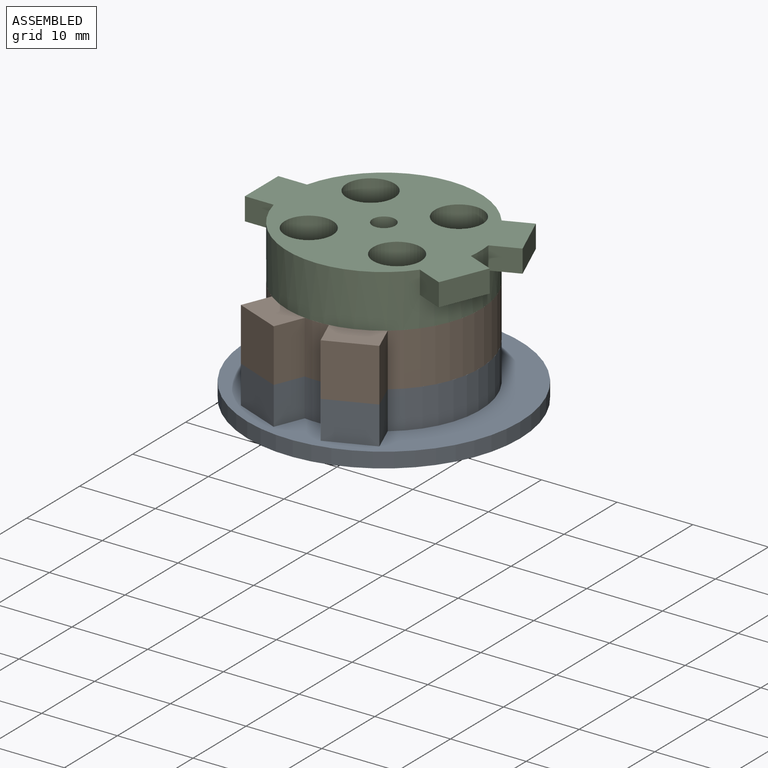
[diagram: assembled view]
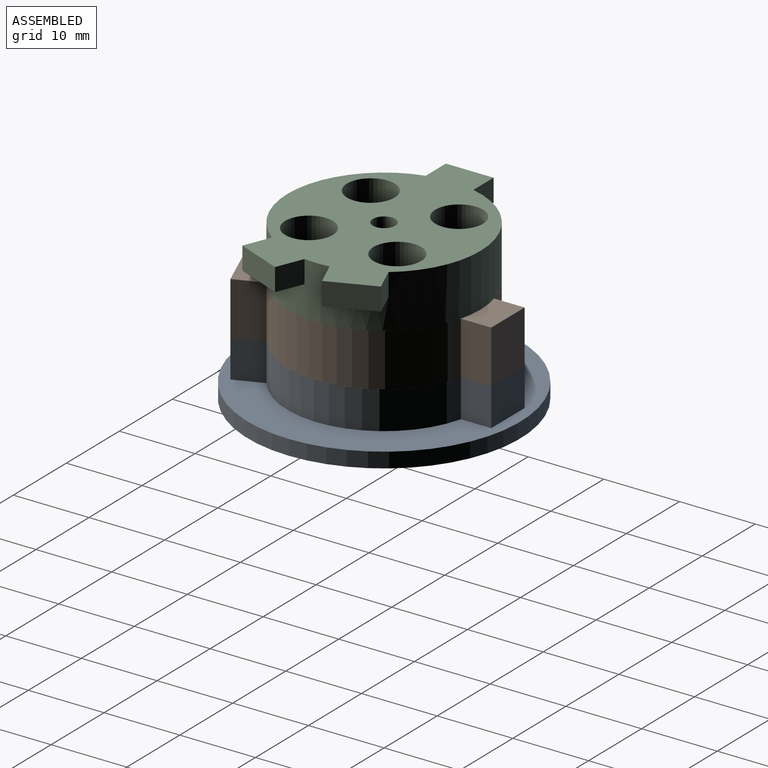
[diagram: assembled view, second angle]
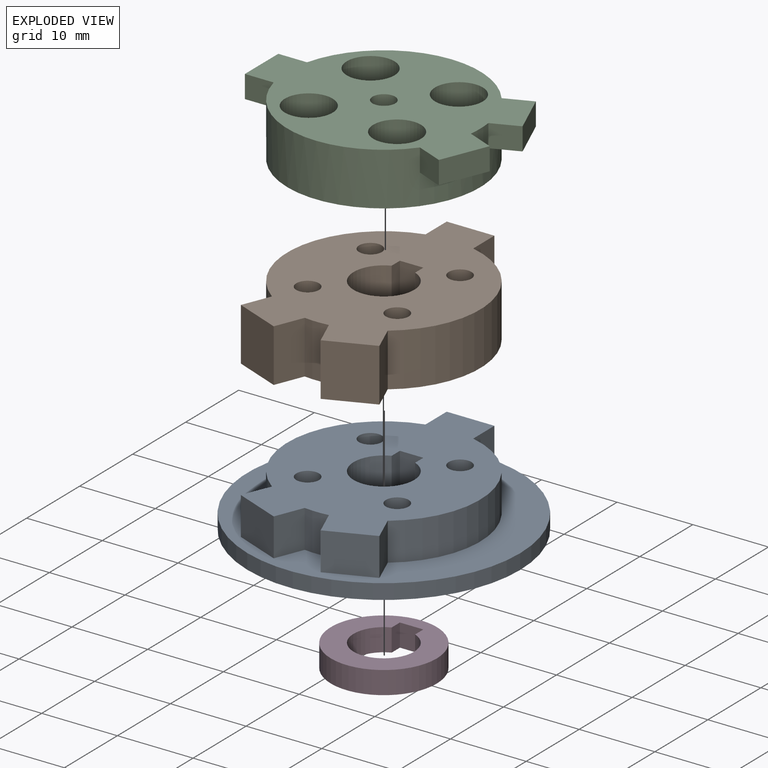
[diagram: exploded view]
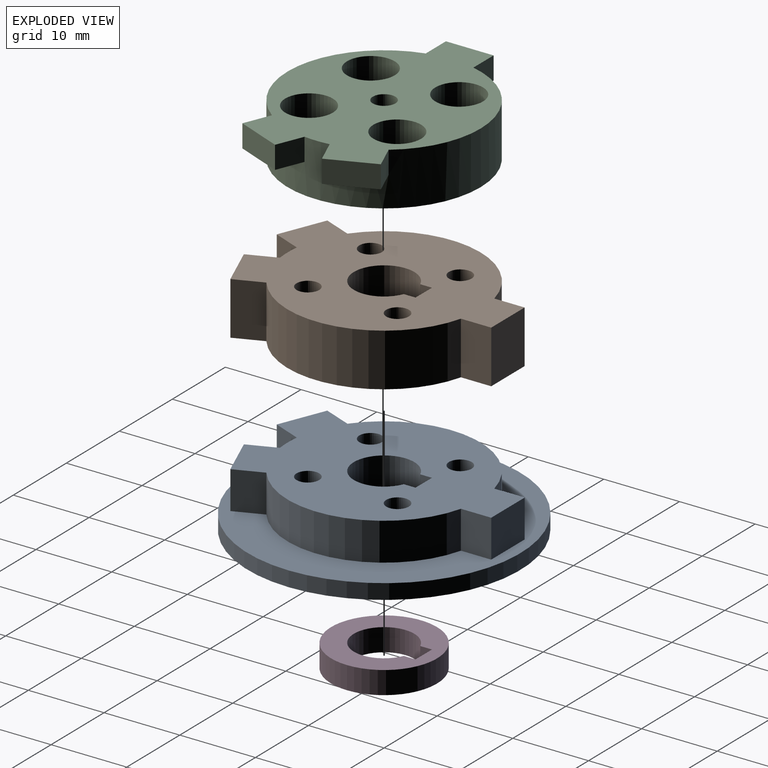
[diagram: exploded view, second angle]
ASSEMBLY  parts=4 mates=3
PART A: 24 faces, bbox 36x36x7 mm
  f0: plane 32.71x25.5mm, normal (0,0,1), area 500.1mm2, adj f2,f3,f4,f5,f6,f7,f8,f9
  f1: plane 36x36mm, normal (0,0,-1), area 935.2mm2, adj f15,f16,f17,f18,f19,f20,f21,f22
  f2: plane 5x3.71mm, normal (0.93,0.38,0), area 20mm2, adj f0,f3,f13,f14
  f3: cylinder r=12.75mm len=22.56mm, axis (0,0,-1), area 143.3mm2, adj f0,f2,f4,f14
  f4: plane 5x4mm, normal (1,0,0), area 20mm2, adj f0,f3,f5,f14
  f5: plane 6.3x5mm, normal (0,1,0), area 31.5mm2, adj f0,f4,f6,f14
  f6: plane 5x4mm, normal (-1,0,0), area 20mm2, adj f0,f5,f7,f14
  f7: cylinder r=12.75mm len=22.56mm, axis (0,0,-1), area 143.3mm2, adj f0,f6,f8,f14
  f8: plane 5x3.71mm, normal (-0.93,0.38,0), area 20mm2, adj f0,f7,f9,f14
  f9: plane 6.05x5mm, normal (-0.38,-0.93,0), area 32.6mm2, adj f0,f8,f10,f14
  f10: plane 5x3.71mm, normal (0.93,-0.38,0), area 20mm2, adj f0,f9,f11,f14
  f11: cylinder r=12.75mm len=5mm, axis (0,0,-1), area 16mm2, adj f0,f10,f12,f14
  f12: plane 5x3.71mm, normal (-0.93,-0.38,0), area 20mm2, adj f0,f11,f13,f14
  f13: plane 6.05x5mm, normal (0.38,-0.93,0), area 32.6mm2, adj f0,f2,f12,f14
  f14: plane 36x36mm, normal (0,0,1), area 435.1mm2, adj f2,f3,f4,f5,f6,f7,f8,f9
  f15: cylinder r=18mm len=36mm, axis (0,0,1), area 226.2mm2, adj f1,f14
  f16: plane 7x3.1mm, normal (0,-1,0), area 21.7mm2, adj f0,f1,f17,f19
  f17: plane 7x1.55mm, normal (1,0,0), area 10.9mm2, adj f0,f1,f16,f18
  f18: cylinder r=4mm len=8mm, axis (0,0,1), area 153.6mm2, adj f0,f1,f17,f19
  f19: plane 7x1.55mm, normal (-1,0,0), area 10.9mm2, adj f0,f1,f16,f18
  f20: cylinder r=1.5mm len=7mm, axis (0,0,1), area 66mm2, adj f0,f1
  f21: cylinder r=1.5mm len=7mm, axis (0,0,1), area 66mm2, adj f0,f1
  f22: cylinder r=1.5mm len=7mm, axis (0,0,1), area 66mm2, adj f0,f1
  f23: cylinder r=1.5mm len=7mm, axis (0,0,1), area 66mm2, adj f0,f1
PART B: 22 faces, bbox 25.5x32.7x7 mm
  f0: plane 32.71x25.5mm, normal (0,0,-1), area 500.1mm2, adj f1,f2,f3,f4,f5,f6,f7,f8
  f1: plane 7x3.71mm, normal (0.93,0.38,0), area 28mm2, adj f0,f2,f12,f13
  f2: cylinder r=12.75mm len=22.56mm, axis (0,0,-1), area 200.7mm2, adj f0,f1,f3,f13
  f3: plane 7x4mm, normal (1,0,0), area 28mm2, adj f0,f2,f4,f13
  f4: plane 7x6.3mm, normal (0,1,0), area 44.1mm2, adj f0,f3,f5,f13
  f5: plane 7x4mm, normal (-1,0,0), area 28mm2, adj f0,f4,f6,f13
  f6: cylinder r=12.75mm len=22.56mm, axis (0,0,-1), area 200.7mm2, adj f0,f5,f7,f13
  f7: plane 7x3.71mm, normal (-0.93,0.38,0), area 28mm2, adj f0,f6,f8,f13
  f8: plane 7x6.05mm, normal (-0.38,-0.93,0), area 45.7mm2, adj f0,f7,f9,f13
  f9: plane 7x3.71mm, normal (0.93,-0.38,0), area 28mm2, adj f0,f8,f10,f13
  f10: cylinder r=12.75mm len=7mm, axis (0,0,-1), area 22.4mm2, adj f0,f9,f11,f13
  f11: plane 7x3.71mm, normal (-0.93,-0.38,0), area 28mm2, adj f0,f10,f12,f13
  f12: plane 7x6.05mm, normal (0.38,-0.93,0), area 45.7mm2, adj f0,f1,f11,f13
  f13: plane 32.71x25.5mm, normal (0,0,1), area 500.1mm2, adj f1,f2,f3,f4,f5,f6,f7,f8
  f14: plane 7x1.55mm, normal (1,0,0), area 10.9mm2, adj f0,f13,f15,f16
  f15: plane 7x3.1mm, normal (0,-1,0), area 21.7mm2, adj f0,f13,f14,f17
  f16: cylinder r=4mm len=8mm, axis (0,0,1), area 153.6mm2, adj f0,f13,f14,f17
  f17: plane 7x1.55mm, normal (-1,0,0), area 10.9mm2, adj f0,f13,f15,f16
  f18: cylinder r=1.5mm len=7mm, axis (0,0,1), area 66mm2, adj f0,f13
  f19: cylinder r=1.5mm len=7mm, axis (0,0,1), area 66mm2, adj f0,f13
  f20: cylinder r=1.5mm len=7mm, axis (0,0,1), area 66mm2, adj f0,f13
  f21: cylinder r=1.5mm len=7mm, axis (0,0,1), area 66mm2, adj f0,f13
PART C: 22 faces, bbox 25.5x32.3x7 mm
  f0: cylinder r=1.5mm len=3mm, axis (0,0,1), area 18.8mm2, adj f13,f20
  f1: plane 7.49x6mm, normal (0,0,-1), area 23mm2, adj f7,f8,f9,f10
  f2: plane 7.49x6mm, normal (0,0,-1), area 23mm2, adj f3,f10,f11,f12
  f3: plane 3.52x3mm, normal (0.93,0.38,0), area 11.4mm2, adj f2,f10,f12,f13
  f4: plane 3.8x3mm, normal (1,0,0), area 11.4mm2, adj f5,f10,f13,f14
  f5: plane 6.3x3mm, normal (0,1,0), area 18.9mm2, adj f4,f6,f13,f14
  f6: plane 3.8x3mm, normal (-1,0,0), area 11.4mm2, adj f5,f10,f13,f14
  f7: plane 3.52x3mm, normal (-0.93,0.38,0), area 11.4mm2, adj f1,f8,f10,f13
  f8: plane 6.05x3mm, normal (-0.38,-0.93,0), area 19.6mm2, adj f1,f7,f9,f13
  f9: plane 3.52x3mm, normal (0.93,-0.38,0), area 11.4mm2, adj f1,f8,f10,f13
  f10: cylinder r=12.75mm len=25.5mm, axis (0,0,-1), area 502mm2, adj f1,f2,f3,f4,f6,f7,f9,f11
  f11: plane 3.52x3mm, normal (-0.93,-0.38,0), area 11.4mm2, adj f2,f10,f12,f13
  f12: plane 6.05x3mm, normal (0.38,-0.93,0), area 19.6mm2, adj f2,f3,f11,f13
  f13: plane 32.31x25.5mm, normal (0,0,1), area 447.2mm2, adj f0,f3,f4,f5,f6,f7,f8,f9
  f14: plane 6.3x3.8mm, normal (0,0,-1), area 22.3mm2, adj f4,f5,f6,f10
  f15: plane 25.5x25.5mm, normal (0,0,-1), area 334.5mm2, adj f10,f16,f17,f18,f19,f21
  f16: cylinder r=3.15mm len=7mm, axis (0,0,1), area 138.5mm2, adj f13,f15
  f17: cylinder r=3.15mm len=7mm, axis (0,0,1), area 138.5mm2, adj f13,f15
  f18: cylinder r=3.15mm len=7mm, axis (0,0,1), area 138.5mm2, adj f13,f15
  f19: cylinder r=3.15mm len=7mm, axis (0,0,1), area 138.5mm2, adj f13,f15
  f20: plane 8.1x8.1mm, normal (0,0,-1), area 44.5mm2, adj f0,f21
  f21: cylinder r=4.05mm len=8.1mm, axis (0,0,-1), area 127.2mm2, adj f15,f20
PART D: 7 faces, bbox 14x14x3 mm
  f0: cylinder r=7mm len=14mm, axis (0,0,-1), area 131.9mm2, adj f1,f2
  f1: plane 14x14mm, normal (0,0,1), area 99.5mm2, adj f0,f3,f4,f5,f6
  f2: plane 14x14mm, normal (0,0,-1), area 99.5mm2, adj f0,f3,f4,f5,f6
  f3: cylinder r=4mm len=8mm, axis (0,0,1), area 65.8mm2, adj f1,f2,f4,f6
  f4: plane 3x1.55mm, normal (-1,0,0), area 4.6mm2, adj f1,f2,f3,f5
  f5: plane 3.1x3mm, normal (0,-1,0), area 9.3mm2, adj f1,f2,f4,f6
  f6: plane 3x1.55mm, normal (1,0,0), area 4.6mm2, adj f1,f2,f3,f5
PLACE A t=(4.7,9.29,-0.18)mm
PLACE B t=(4.7,9.29,4.82)mm
PLACE C rot(axis=(0,0,1),90deg) t=(4.7,9.29,15.82)mm
PLACE D t=(4.7,9.29,-5.18)mm
MATE revolute C.f0 <-> B.f16  axis (0,0,-1) through (4.7,9.29,11.82)mm
MATE fastened B.f0 <-> A.f0  axis (0,0,-1) through (3.15,14.52,4.82)mm
MATE fastened D.f3 <-> A.f15  axis (0,0,1) through (4.7,9.29,-2.18)mm
